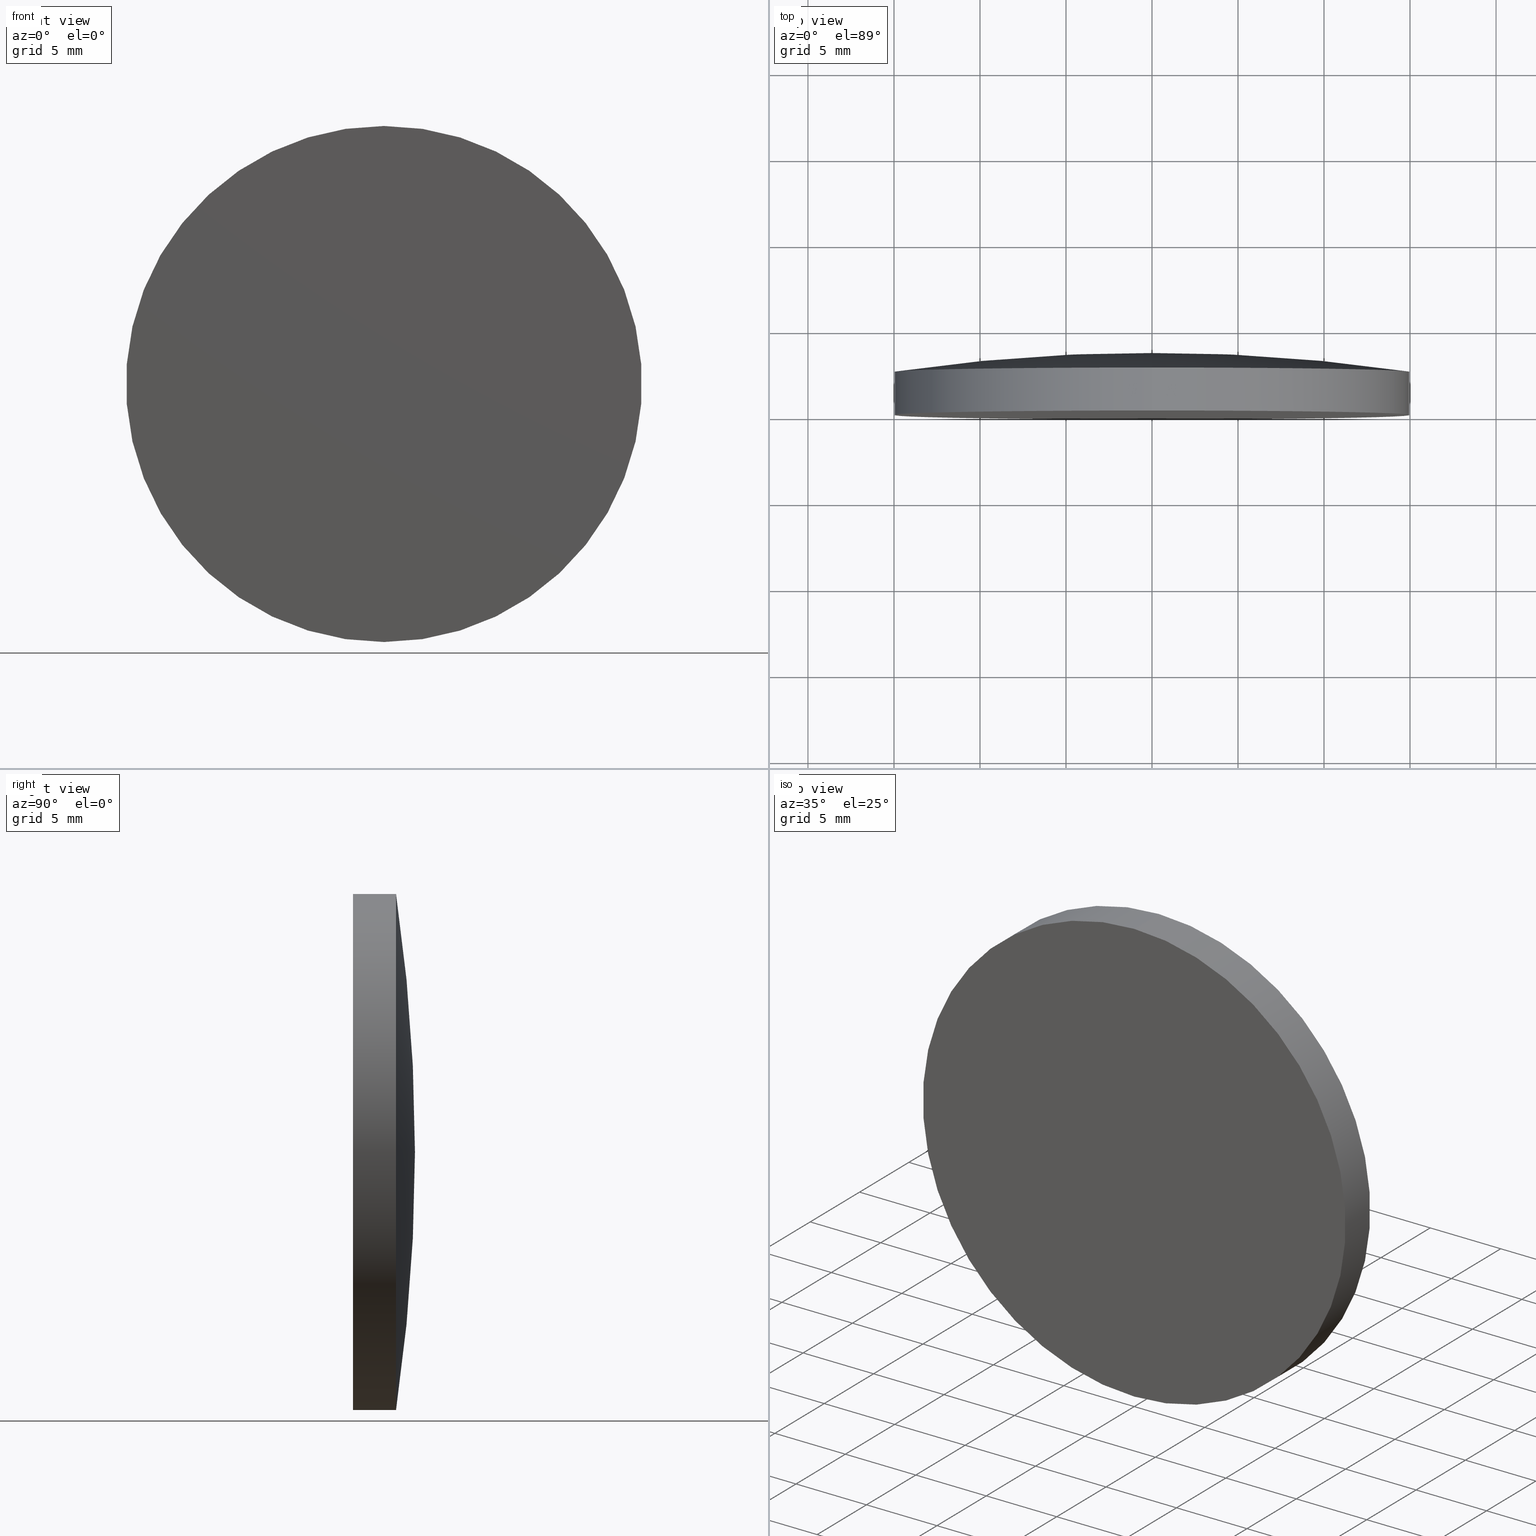
[diagram: canonical four-view strip — front | top / right | iso, engineering-drawing reading convention]
A machine part, canonical four-view strip (front | top / right | iso — engineering-drawing reading convention). The complete STEP part file that produces these views, byte-faithful:
ISO-10303-21;
HEADER;
FILE_DESCRIPTION (( 'STEP AP203' ),
    '1' );
FILE_NAME ('100555.STEP',
    '2024-05-09T01:31:36',
    ( '' ),
    ( '' ),
    'SwSTEP 2.0',
    'SolidWorks 2020',
    '' );
FILE_SCHEMA (( 'CONFIG_CONTROL_DESIGN' ));
ENDSEC;

DATA;
#1 = EDGE_LOOP ( 'NONE', ( #155, #31 ) ) ;
#2 = SHAPE_DEFINITION_REPRESENTATION ( #47, #88 ) ;
#3 = DIRECTION ( 'NONE',  ( -0.000000000000000000, 1.000000000000000000, -0.000000000000000000 ) ) ;
#4 = CARTESIAN_POINT ( 'NONE',  ( 0.000000000000000000, 3.600000000000000089, 15.00000000000000000 ) ) ;
#5 = DIRECTION ( 'NONE',  ( 0.000000000000000000, 0.000000000000000000, 1.000000000000000000 ) ) ;
#6 = CYLINDRICAL_SURFACE ( 'NONE', #120, 15.00000000000000000 ) ;
#7 = DIRECTION ( 'NONE',  ( -0.000000000000000000, 1.000000000000000000, -0.000000000000000000 ) ) ;
#8 = LOCAL_TIME ( 9, 31, 36.00000000000000000, #28 ) ;
#9 = EDGE_CURVE ( 'NONE', #148, #124, #190, .T. ) ;
#10 = LOCAL_TIME ( 9, 31, 36.00000000000000000, #180 ) ;
#11 = DATE_TIME_ROLE ( 'creation_date' ) ;
#12 = APPROVAL ( #63, 'δָ��' ) ;
#13 = ORIENTED_EDGE ( 'NONE', *, *, #141, .T. ) ;
#14 = EDGE_LOOP ( 'NONE', ( #16, #140, #13 ) ) ;
#15 = AXIS2_PLACEMENT_3D ( 'NONE', #59, #3, #99 ) ;
#16 = ORIENTED_EDGE ( 'NONE', *, *, #27, .F. ) ;
#17 = ADVANCED_FACE ( 'NONE', ( #67 ), #200, .T. ) ;
#18 = DIRECTION ( 'NONE',  ( 0.000000000000000000, 0.000000000000000000, 1.000000000000000000 ) ) ;
#19 = EDGE_LOOP ( 'NONE', ( #167, #198, #53 ) ) ;
#20 = CC_DESIGN_DATE_AND_TIME_ASSIGNMENT ( #93, #95, ( #117 ) ) ;
#21 = DIRECTION ( 'NONE',  ( -0.000000000000000000, 1.000000000000000000, -0.000000000000000000 ) ) ;
#22 = FACE_OUTER_BOUND ( 'NONE', #19, .T. ) ;
#23 = LOCAL_TIME ( 9, 31, 36.00000000000000000, #44 ) ;
#24 = APPROVAL_DATE_TIME ( #161, #109 ) ;
#25 = AXIS2_PLACEMENT_3D ( 'NONE', #90, #58, #136 ) ;
#26 = PERSON_AND_ORGANIZATION_ROLE ( 'design_owner' ) ;
#27 = EDGE_CURVE ( 'NONE', #50, #147, #162, .T. ) ;
#28 = COORDINATED_UNIVERSAL_TIME_OFFSET ( 8, 0, .AHEAD. ) ;
#29 = APPROVAL_DATE_TIME ( #76, #125 ) ;
#30 = APPLICATION_CONTEXT ( 'configuration controlled 3d designs of mechanical parts and assemblies' ) ;
#31 = ORIENTED_EDGE ( 'NONE', *, *, #9, .F. ) ;
#32 = CC_DESIGN_PERSON_AND_ORGANIZATION_ASSIGNMENT ( #91, #145, ( #154 ) ) ;
#33 = CC_DESIGN_SECURITY_CLASSIFICATION ( #117, ( #154 ) ) ;
#34 = LOCAL_TIME ( 9, 31, 36.00000000000000000, #115 ) ;
#35 = EDGE_CURVE ( 'NONE', #50, #107, #156, .T. ) ;
#36 = DIRECTION ( 'NONE',  ( 1.000000000000000000, 0.000000000000000000, 1.224646799147353207E-16 ) ) ;
#37 = MANIFOLD_SOLID_BREP ( '��ת1', #144 ) ;
#38 = ORIENTED_EDGE ( 'NONE', *, *, #35, .F. ) ;
#39 = AXIS2_PLACEMENT_3D ( 'NONE', #71, #86, #128 ) ;
#40 = VECTOR ( 'NONE', #21, 1000.000000000000000 ) ;
#41 = FACE_OUTER_BOUND ( 'NONE', #65, .T. ) ;
#42 = DIRECTION ( 'NONE',  ( -0.000000000000000000, 1.000000000000000000, -0.000000000000000000 ) ) ;
#43 = CALENDAR_DATE ( 2024, 9, 5 ) ;
#44 = COORDINATED_UNIVERSAL_TIME_OFFSET ( 8, 0, .AHEAD. ) ;
#45 = AXIS2_PLACEMENT_3D ( 'NONE', #97, #104, #163 ) ;
#46 = COORDINATED_UNIVERSAL_TIME_OFFSET ( 8, 0, .AHEAD. ) ;
#47 = PRODUCT_DEFINITION_SHAPE ( 'NONE', 'NONE',  #160 ) ;
#48 = CALENDAR_DATE ( 2024, 9, 5 ) ;
#49 = PERSON_AND_ORGANIZATION ( #189, #152 ) ;
#50 = VERTEX_POINT ( 'NONE', #56 ) ;
#51 = EDGE_LOOP ( 'NONE', ( #83, #81, #149, #38 ) ) ;
#52 = EDGE_CURVE ( 'NONE', #124, #107, #127, .T. ) ;
#53 = ORIENTED_EDGE ( 'NONE', *, *, #141, .F. ) ;
#54 = CYLINDRICAL_SURFACE ( 'NONE', #92, 15.00000000000000000 ) ;
#55 = FACE_OUTER_BOUND ( 'NONE', #1, .T. ) ;
#56 = CARTESIAN_POINT ( 'NONE',  ( 1.836970198721033533E-15, 2.500000000000000444, -15.00000000000003020 ) ) ;
#57 = CIRCLE ( 'NONE', #39, 15.00000000000000000 ) ;
#58 = DIRECTION ( 'NONE',  ( -0.000000000000000000, 1.000000000000000000, -0.000000000000000000 ) ) ;
#59 = CARTESIAN_POINT ( 'NONE',  ( 0.000000000000000000, -1.734723475976807094E-15, 0.000000000000000000 ) ) ;
#60 = APPROVAL_STATUS ( 'not_yet_approved' ) ;
#61 = APPLICATION_CONTEXT ( 'configuration controlled 3d designs of mechanical parts and assemblies' ) ;
#62 = MECHANICAL_CONTEXT ( 'NONE', #61, 'mechanical' ) ;
#63 = APPROVAL_STATUS ( 'not_yet_approved' ) ;
#64 = CALENDAR_DATE ( 2024, 9, 5 ) ;
#65 = EDGE_LOOP ( 'NONE', ( #138, #135, #137, #201 ) ) ;
#66 = TOROIDAL_SURFACE ( 'NONE', #164, -0.03353293412618370273, 103.2800000000000296 ) ;
#67 = FACE_OUTER_BOUND ( 'NONE', #14, .T. ) ;
#68 = APPROVAL_PERSON_ORGANIZATION ( #79, #12, #122 ) ;
#69 = DIRECTION ( 'NONE',  ( 0.000000000000000000, 0.000000000000000000, 1.000000000000000000 ) ) ;
#70 = CARTESIAN_POINT ( 'NONE',  ( 0.000000000000000000, -1.734723475976807094E-15, 15.00000000000000000 ) ) ;
#71 = CARTESIAN_POINT ( 'NONE',  ( 0.000000000000000000, -1.734723475976807094E-15, 0.000000000000000000 ) ) ;
#72 = FACE_OUTER_BOUND ( 'NONE', #51, .T. ) ;
#73 = EDGE_CURVE ( 'NONE', #124, #148, #57, .T. ) ;
#74 = CC_DESIGN_APPROVAL ( #125, ( #160 ) ) ;
#75 = AXIS2_PLACEMENT_3D ( 'NONE', #168, #185, #18 ) ;
#76 = DATE_AND_TIME ( #77, #34 ) ;
#77 = CALENDAR_DATE ( 2024, 9, 5 ) ;
#78 = CC_DESIGN_PERSON_AND_ORGANIZATION_ASSIGNMENT ( #133, #197, ( #160 ) ) ;
#79 = PERSON_AND_ORGANIZATION ( #189, #152 ) ;
#80 = APPROVAL_ROLE ( '' ) ;
#81 = ORIENTED_EDGE ( 'NONE', *, *, #9, .T. ) ;
#82 = PERSON_AND_ORGANIZATION ( #189, #152 ) ;
#83 = ORIENTED_EDGE ( 'NONE', *, *, #173, .F. ) ;
#84 = AXIS2_PLACEMENT_3D ( 'NONE', #170, #153, #188 ) ;
#85 = UNCERTAINTY_MEASURE_WITH_UNIT (LENGTH_MEASURE( 1.000000000000000082E-05 ), #166, 'distance_accuracy_value', 'NONE');
#86 = DIRECTION ( 'NONE',  ( -0.000000000000000000, 1.000000000000000000, -0.000000000000000000 ) ) ;
#87 = CARTESIAN_POINT ( 'NONE',  ( 0.000000000000000000, -99.67999455626598149, 0.000000000000000000 ) ) ;
#88 = ADVANCED_BREP_SHAPE_REPRESENTATION ( '100555', ( #37, #45 ), #98 ) ;
#89 = DIRECTION ( 'NONE',  ( 0.000000000000000000, 0.000000000000000000, 1.000000000000000000 ) ) ;
#90 = CARTESIAN_POINT ( 'NONE',  ( 0.000000000000000000, 2.499999999999998224, 0.000000000000000000 ) ) ;
#91 = PERSON_AND_ORGANIZATION ( #189, #152 ) ;
#92 = AXIS2_PLACEMENT_3D ( 'NONE', #142, #143, #5 ) ;
#93 = DATE_AND_TIME ( #94, #23 ) ;
#94 = CALENDAR_DATE ( 2024, 9, 5 ) ;
#95 = DATE_TIME_ROLE ( 'classification_date' ) ;
#96 = CC_DESIGN_APPROVAL ( #12, ( #117 ) ) ;
#97 = CARTESIAN_POINT ( 'NONE',  ( 0.000000000000000000, 0.000000000000000000, 0.000000000000000000 ) ) ;
#98 =( GEOMETRIC_REPRESENTATION_CONTEXT ( 3 ) GLOBAL_UNCERTAINTY_ASSIGNED_CONTEXT ( ( #85 ) ) GLOBAL_UNIT_ASSIGNED_CONTEXT ( ( #166, #165, #146 ) ) REPRESENTATION_CONTEXT ( 'NONE', 'WORKASPACE' ) );
#99 = DIRECTION ( 'NONE',  ( 0.000000000000000000, 0.000000000000000000, 1.000000000000000000 ) ) ;
#100 = LINE ( 'NONE', #157, #40 ) ;
#101 = CARTESIAN_POINT ( 'NONE',  ( 0.000000000000000000, -9.184850993605147944E-16, 0.000000000000000000 ) ) ;
#102 = CARTESIAN_POINT ( 'NONE',  ( 0.000000000000000000, 3.600000000000000089, 0.000000000000000000 ) ) ;
#103 = DATE_AND_TIME ( #43, #8 ) ;
#104 = DIRECTION ( 'NONE',  ( 0.000000000000000000, 0.000000000000000000, 1.000000000000000000 ) ) ;
#105 = PERSON_AND_ORGANIZATION_ROLE ( 'design_supplier' ) ;
#106 = ADVANCED_FACE ( 'NONE', ( #72 ), #6, .T. ) ;
#107 = VERTEX_POINT ( 'NONE', #169 ) ;
#108 = APPROVAL_DATE_TIME ( #110, #12 ) ;
#109 = APPROVAL ( #179, 'δָ��' ) ;
#110 = DATE_AND_TIME ( #48, #10 ) ;
#111 = PLANE ( 'NONE',  #113 ) ;
#112 = CC_DESIGN_PERSON_AND_ORGANIZATION_ASSIGNMENT ( #194, #176, ( #117 ) ) ;
#113 = AXIS2_PLACEMENT_3D ( 'NONE', #101, #158, #191 ) ;
#114 = CARTESIAN_POINT ( 'NONE',  ( 0.000000000000000000, -99.67999455626598149, 0.000000000000000000 ) ) ;
#115 = COORDINATED_UNIVERSAL_TIME_OFFSET ( 8, 0, .AHEAD. ) ;
#116 = APPLICATION_PROTOCOL_DEFINITION ( 'international standard', 'config_control_design', 1994, #30 ) ;
#117 = SECURITY_CLASSIFICATION ( '', '', #132 ) ;
#118 = ADVANCED_FACE ( 'NONE', ( #41 ), #54, .T. ) ;
#119 = PERSON_AND_ORGANIZATION ( #189, #152 ) ;
#120 = AXIS2_PLACEMENT_3D ( 'NONE', #102, #131, #69 ) ;
#121 = APPROVAL_PERSON_ORGANIZATION ( #82, #125, #199 ) ;
#122 = APPROVAL_ROLE ( '' ) ;
#123 = PERSON_AND_ORGANIZATION ( #189, #152 ) ;
#124 = VERTEX_POINT ( 'NONE', #70 ) ;
#125 = APPROVAL ( #60, 'δָ��' ) ;
#126 = CARTESIAN_POINT ( 'NONE',  ( -4.106600044364992052E-18, -99.67999455626598149, 0.03353293412618370273 ) ) ;
#127 = LINE ( 'NONE', #4, #183 ) ;
#128 = DIRECTION ( 'NONE',  ( 0.000000000000000000, 0.000000000000000000, 1.000000000000000000 ) ) ;
#129 = CARTESIAN_POINT ( 'NONE',  ( 1.836970198721029589E-15, -1.734723475976807094E-15, -15.00000000000000000 ) ) ;
#130 = CIRCLE ( 'NONE', #25, 15.00000000000000000 ) ;
#131 = DIRECTION ( 'NONE',  ( -0.000000000000000000, 1.000000000000000000, -0.000000000000000000 ) ) ;
#132 = SECURITY_CLASSIFICATION_LEVEL ( 'unclassified' ) ;
#133 = PERSON_AND_ORGANIZATION ( #189, #152 ) ;
#134 = PRODUCT ( '100555', '100555', '', ( #62 ) ) ;
#135 = ORIENTED_EDGE ( 'NONE', *, *, #173, .T. ) ;
#136 = DIRECTION ( 'NONE',  ( 0.000000000000000000, 0.000000000000000000, 1.000000000000000000 ) ) ;
#137 = ORIENTED_EDGE ( 'NONE', *, *, #192, .F. ) ;
#138 = ORIENTED_EDGE ( 'NONE', *, *, #73, .T. ) ;
#139 = AXIS2_PLACEMENT_3D ( 'NONE', #87, #7, #89 ) ;
#140 = ORIENTED_EDGE ( 'NONE', *, *, #35, .T. ) ;
#141 = EDGE_CURVE ( 'NONE', #107, #147, #171, .T. ) ;
#142 = CARTESIAN_POINT ( 'NONE',  ( 0.000000000000000000, 3.600000000000000089, 0.000000000000000000 ) ) ;
#143 = DIRECTION ( 'NONE',  ( -0.000000000000000000, 1.000000000000000000, -0.000000000000000000 ) ) ;
#144 = CLOSED_SHELL ( 'NONE', ( #118, #181, #17, #151, #106 ) ) ;
#145 = PERSON_AND_ORGANIZATION_ROLE ( 'creator' ) ;
#146 =( NAMED_UNIT ( * ) SI_UNIT ( $, .STERADIAN. ) SOLID_ANGLE_UNIT ( ) );
#147 = VERTEX_POINT ( 'NONE', #186 ) ;
#148 = VERTEX_POINT ( 'NONE', #129 ) ;
#149 = ORIENTED_EDGE ( 'NONE', *, *, #52, .T. ) ;
#150 = AXIS2_PLACEMENT_3D ( 'NONE', #126, #36, #193 ) ;
#151 = ADVANCED_FACE ( 'NONE', ( #55 ), #111, .T. ) ;
#152 = ORGANIZATION ( 'δָ��', 'δָ��', '' ) ;
#153 = DIRECTION ( 'NONE',  ( -1.000000000000000000, 0.000000000000000000, 0.000000000000000000 ) ) ;
#154 = PRODUCT_DEFINITION_FORMATION_WITH_SPECIFIED_SOURCE ( '�κ�', '', #134, .NOT_KNOWN. ) ;
#155 = ORIENTED_EDGE ( 'NONE', *, *, #73, .F. ) ;
#156 = CIRCLE ( 'NONE', #75, 15.00000000000000000 ) ;
#157 = CARTESIAN_POINT ( 'NONE',  ( 1.836970198721029589E-15, 3.600000000000000089, -15.00000000000000000 ) ) ;
#158 = DIRECTION ( 'NONE',  ( 0.000000000000000000, -1.000000000000000000, 0.000000000000000000 ) ) ;
#159 = DIRECTION ( 'NONE',  ( 0.000000000000000000, 0.000000000000000000, 1.000000000000000000 ) ) ;
#160 = PRODUCT_DEFINITION ( 'δ֪', '', #154, #187 ) ;
#161 = DATE_AND_TIME ( #64, #178 ) ;
#162 = CIRCLE ( 'NONE', #150, 103.2800000000000296 ) ;
#163 = DIRECTION ( 'NONE',  ( 1.000000000000000000, 0.000000000000000000, 0.000000000000000000 ) ) ;
#164 = AXIS2_PLACEMENT_3D ( 'NONE', #114, #172, #159 ) ;
#165 =( NAMED_UNIT ( * ) PLANE_ANGLE_UNIT ( ) SI_UNIT ( $, .RADIAN. ) );
#166 =( LENGTH_UNIT ( ) NAMED_UNIT ( * ) SI_UNIT ( .MILLI., .METRE. ) );
#167 = ORIENTED_EDGE ( 'NONE', *, *, #192, .T. ) ;
#168 = CARTESIAN_POINT ( 'NONE',  ( 0.000000000000000000, 2.499999999999998224, 0.000000000000000000 ) ) ;
#169 = CARTESIAN_POINT ( 'NONE',  ( 0.000000000000000000, 2.500000000000000444, 15.00000000000003020 ) ) ;
#170 = CARTESIAN_POINT ( 'NONE',  ( 0.000000000000000000, -99.67999455626598149, -0.03353293412618370273 ) ) ;
#171 = CIRCLE ( 'NONE', #84, 103.2800000000000296 ) ;
#172 = DIRECTION ( 'NONE',  ( -0.000000000000000000, 1.000000000000000000, -0.000000000000000000 ) ) ;
#173 = EDGE_CURVE ( 'NONE', #148, #50, #100, .T. ) ;
#174 = CC_DESIGN_APPROVAL ( #109, ( #154 ) ) ;
#175 = APPLICATION_PROTOCOL_DEFINITION ( 'international standard', 'config_control_design', 1994, #61 ) ;
#176 = PERSON_AND_ORGANIZATION_ROLE ( 'classification_officer' ) ;
#177 = CC_DESIGN_DATE_AND_TIME_ASSIGNMENT ( #103, #11, ( #160 ) ) ;
#178 = LOCAL_TIME ( 9, 31, 36.00000000000000000, #46 ) ;
#179 = APPROVAL_STATUS ( 'not_yet_approved' ) ;
#180 = COORDINATED_UNIVERSAL_TIME_OFFSET ( 8, 0, .AHEAD. ) ;
#181 = ADVANCED_FACE ( 'NONE', ( #22 ), #66, .T. ) ;
#182 = APPROVAL_PERSON_ORGANIZATION ( #49, #109, #80 ) ;
#183 = VECTOR ( 'NONE', #42, 1000.000000000000000 ) ;
#184 = PRODUCT_RELATED_PRODUCT_CATEGORY ( 'detail', '', ( #134 ) ) ;
#185 = DIRECTION ( 'NONE',  ( -0.000000000000000000, 1.000000000000000000, -0.000000000000000000 ) ) ;
#186 = CARTESIAN_POINT ( 'NONE',  ( 0.000000000000000000, 3.600000000000000089, 0.000000000000000000 ) ) ;
#187 = DESIGN_CONTEXT ( 'detailed design', #30, 'design' ) ;
#188 = DIRECTION ( 'NONE',  ( 0.000000000000000000, 0.000000000000000000, 1.000000000000000000 ) ) ;
#189 = PERSON ( 'δָ��', 'δָ��', 'δָ��', ('δָ��'), ('δָ��'), ('δָ��') ) ;
#190 = CIRCLE ( 'NONE', #15, 15.00000000000000000 ) ;
#191 = DIRECTION ( 'NONE',  ( 0.000000000000000000, -0.000000000000000000, -1.000000000000000000 ) ) ;
#192 = EDGE_CURVE ( 'NONE', #107, #50, #130, .T. ) ;
#193 = DIRECTION ( 'NONE',  ( 1.224646799147353207E-16, 0.000000000000000000, -1.000000000000000000 ) ) ;
#194 = PERSON_AND_ORGANIZATION ( #189, #152 ) ;
#195 = CC_DESIGN_PERSON_AND_ORGANIZATION_ASSIGNMENT ( #123, #105, ( #154 ) ) ;
#196 = CC_DESIGN_PERSON_AND_ORGANIZATION_ASSIGNMENT ( #119, #26, ( #134 ) ) ;
#197 = PERSON_AND_ORGANIZATION_ROLE ( 'creator' ) ;
#198 = ORIENTED_EDGE ( 'NONE', *, *, #27, .T. ) ;
#199 = APPROVAL_ROLE ( '' ) ;
#200 = TOROIDAL_SURFACE ( 'NONE', #139, -0.03353293412618370273, 103.2800000000000296 ) ;
#201 = ORIENTED_EDGE ( 'NONE', *, *, #52, .F. ) ;
ENDSEC;
END-ISO-10303-21;
